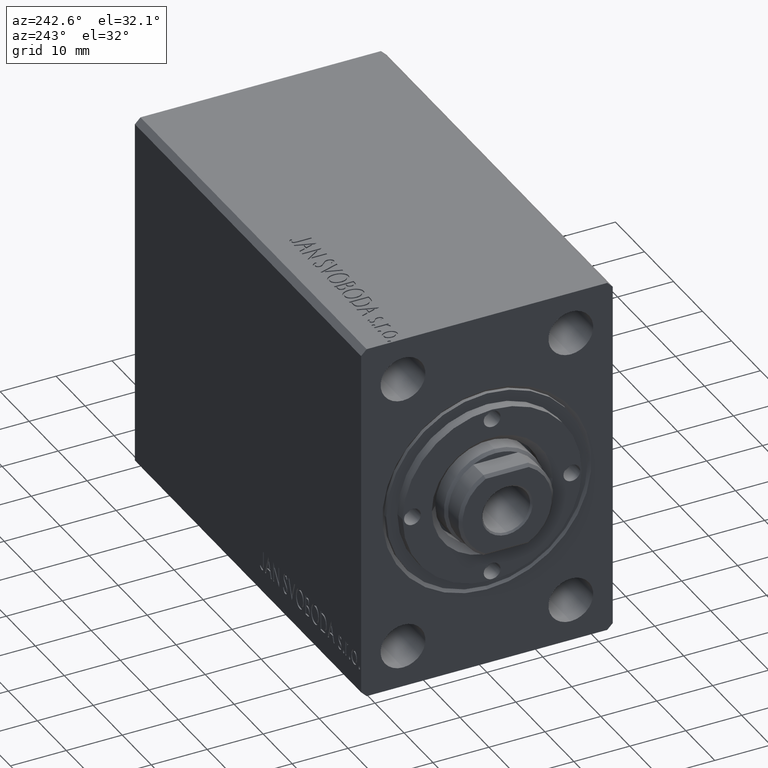
[diagram: clean part render]
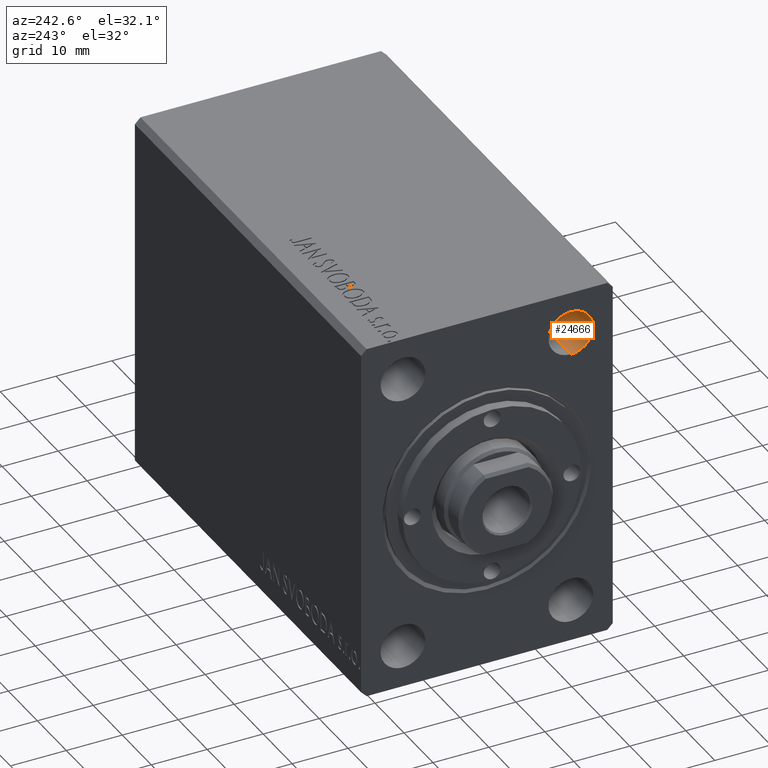
[diagram: same view with one face highlighted and labeled with its STEP entity id]
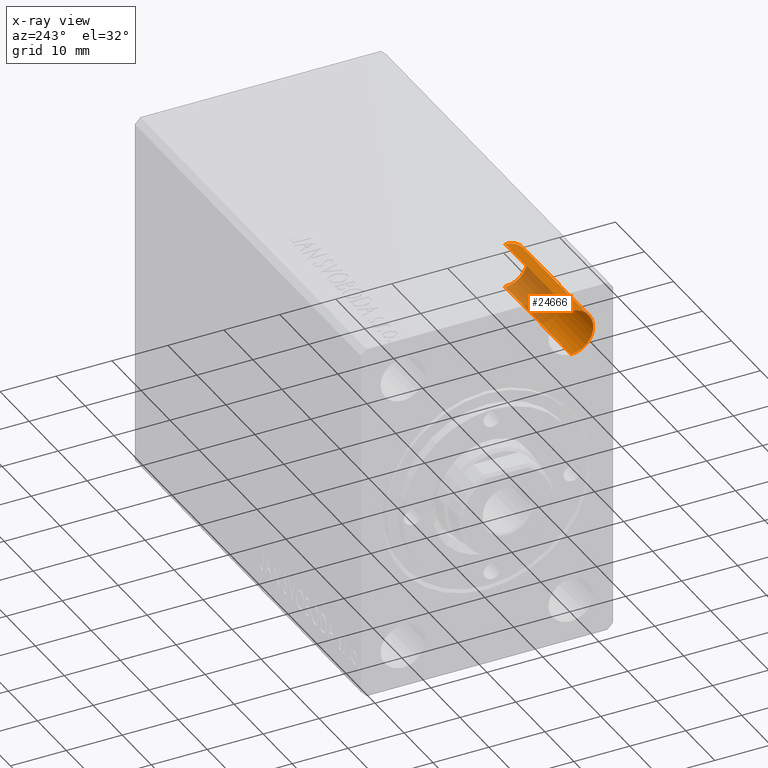
[diagram: x-ray of the same camera — body ghosted, the highlighted face saturated]
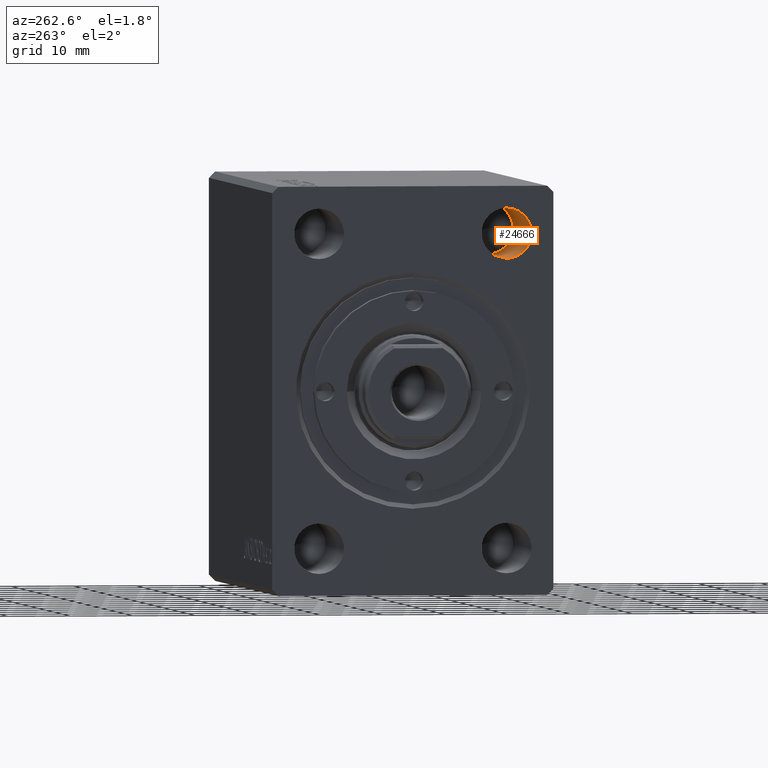
[diagram: same view with one face highlighted and labeled with its STEP entity id]
A machine part, auxiliary view. The second image highlights one B-rep face of the part: STEP entity #24666.
The next image is the same camera in x-ray: the body ghosted, the highlighted face saturated — about 39% of this face is hidden behind the body in this view.
A second angle (auxiliary view) of the same face is appended — the face is thin or edge-on in the first view.
In plain terms, the highlighted cylindrical surface (edge-blend (fillet) strip) has radius 4 mm, axis along (-1, -0, -0).
Its self-contained STEP definition (entity closure, byte-faithful):
#348 = CARTESIAN_POINT ( 'NONE',  ( 22.67000000000000171, -14.99999999999999645, 24.99999999999999645 ) ) ;
#3407 = EDGE_CURVE ( 'NONE', #19415, #4350, #25331, .T. ) ;
#3568 = CARTESIAN_POINT ( 'NONE',  ( 0.000000000000000000, -14.99999999999999645, 24.99999999999999645 ) ) ;
#4350 = VERTEX_POINT ( 'NONE', #22198 ) ;
#5944 = ORIENTED_EDGE ( 'NONE', *, *, #35749, .F. ) ;
#8228 = CIRCLE ( 'NONE', #31043, 4.000000000000000000 ) ;
#9446 = VECTOR ( 'NONE', #11727, 1000.000000000000000 ) ;
#10937 = DIRECTION ( 'NONE',  ( -1.000000000000000000, -0.000000000000000000, -0.000000000000000000 ) ) ;
#11727 = DIRECTION ( 'NONE',  ( -1.000000000000000000, -0.000000000000000000, -0.000000000000000000 ) ) ;
#11988 = DIRECTION ( 'NONE',  ( -1.000000000000000000, -0.000000000000000000, -0.000000000000000000 ) ) ;
#12229 = EDGE_CURVE ( 'NONE', #35030, #4350, #8228, .T. ) ;
#12956 = DIRECTION ( 'NONE',  ( -1.000000000000000000, -0.000000000000000000, -0.000000000000000000 ) ) ;
#13975 = DIRECTION ( 'NONE',  ( -1.000000000000000000, -0.000000000000000000, -0.000000000000000000 ) ) ;
#15550 = DIRECTION ( 'NONE',  ( 0.000000000000000000, 0.000000000000000000, 1.000000000000000000 ) ) ;
#15751 = EDGE_CURVE ( 'NONE', #34830, #35030, #17839, .T. ) ;
#17839 = LINE ( 'NONE', #41718, #30351 ) ;
#19415 = VERTEX_POINT ( 'NONE', #27374 ) ;
#20440 = DIRECTION ( 'NONE',  ( 0.000000000000000000, 0.000000000000000000, 1.000000000000000000 ) ) ;
#20736 = FACE_OUTER_BOUND ( 'NONE', #33260, .T. ) ;
#22198 = CARTESIAN_POINT ( 'NONE',  ( 3.061616997868395467E-16, -14.99999999999999645, 28.99999999999999645 ) ) ;
#23407 = ORIENTED_EDGE ( 'NONE', *, *, #12229, .T. ) ;
#24666 = ADVANCED_FACE ( 'NONE', ( #20736 ), #37038, .F. ) ;
#25331 = LINE ( 'NONE', #25543, #9446 ) ;
#25490 = ORIENTED_EDGE ( 'NONE', *, *, #15751, .T. ) ;
#25543 = CARTESIAN_POINT ( 'NONE',  ( 0.000000000000000000, -14.99999999999999645, 28.99999999999999645 ) ) ;
#26506 = CIRCLE ( 'NONE', #27928, 3.999999999999996447 ) ;
#27374 = CARTESIAN_POINT ( 'NONE',  ( 22.67000000000000171, -14.99999999999999645, 28.99999999999999289 ) ) ;
#27928 = AXIS2_PLACEMENT_3D ( 'NONE', #348, #13975, #20440 ) ;
#30351 = VECTOR ( 'NONE', #10937, 1000.000000000000000 ) ;
#31043 = AXIS2_PLACEMENT_3D ( 'NONE', #36288, #11988, #15550 ) ;
#33260 = EDGE_LOOP ( 'NONE', ( #5944, #25490, #23407, #36096 ) ) ;
#34830 = VERTEX_POINT ( 'NONE', #40461 ) ;
#35030 = VERTEX_POINT ( 'NONE', #35734 ) ;
#35734 = CARTESIAN_POINT ( 'NONE',  ( 3.061616997868395467E-16, -14.99999999999999645, 20.99999999999999645 ) ) ;
#35749 = EDGE_CURVE ( 'NONE', #34830, #19415, #26506, .T. ) ;
#36096 = ORIENTED_EDGE ( 'NONE', *, *, #3407, .F. ) ;
#36288 = CARTESIAN_POINT ( 'NONE',  ( 3.061616997868395467E-16, -14.99999999999999645, 24.99999999999999645 ) ) ;
#37038 = CYLINDRICAL_SURFACE ( 'NONE', #42041, 4.000000000000000000 ) ;
#40461 = CARTESIAN_POINT ( 'NONE',  ( 22.67000000000000171, -14.99999999999999645, 21.00000000000000000 ) ) ;
#40609 = DIRECTION ( 'NONE',  ( 0.000000000000000000, 0.000000000000000000, 1.000000000000000000 ) ) ;
#41718 = CARTESIAN_POINT ( 'NONE',  ( 0.000000000000000000, -14.99999999999999645, 20.99999999999999645 ) ) ;
#42041 = AXIS2_PLACEMENT_3D ( 'NONE', #3568, #12956, #40609 ) ;